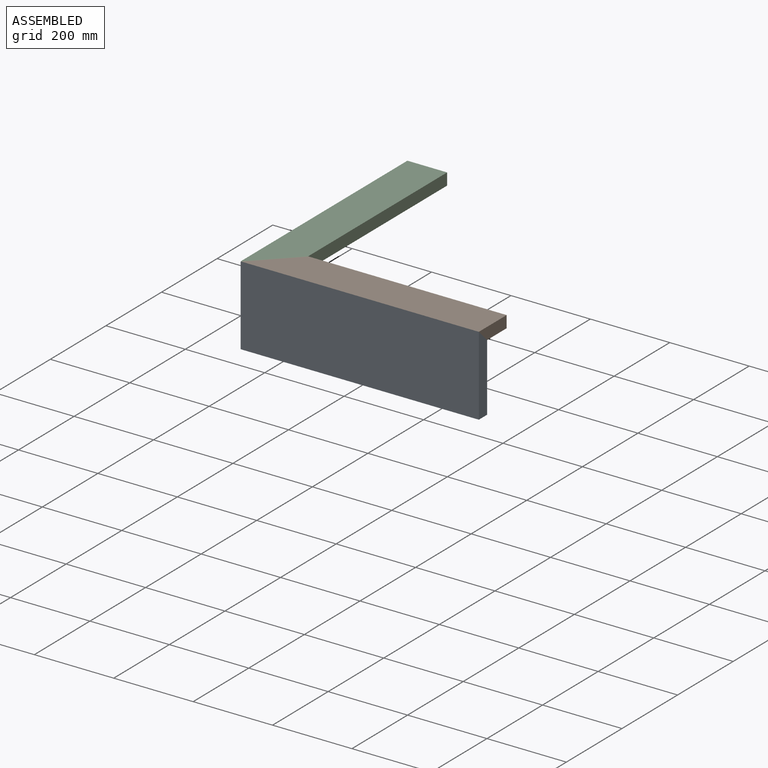
[diagram: assembled view]
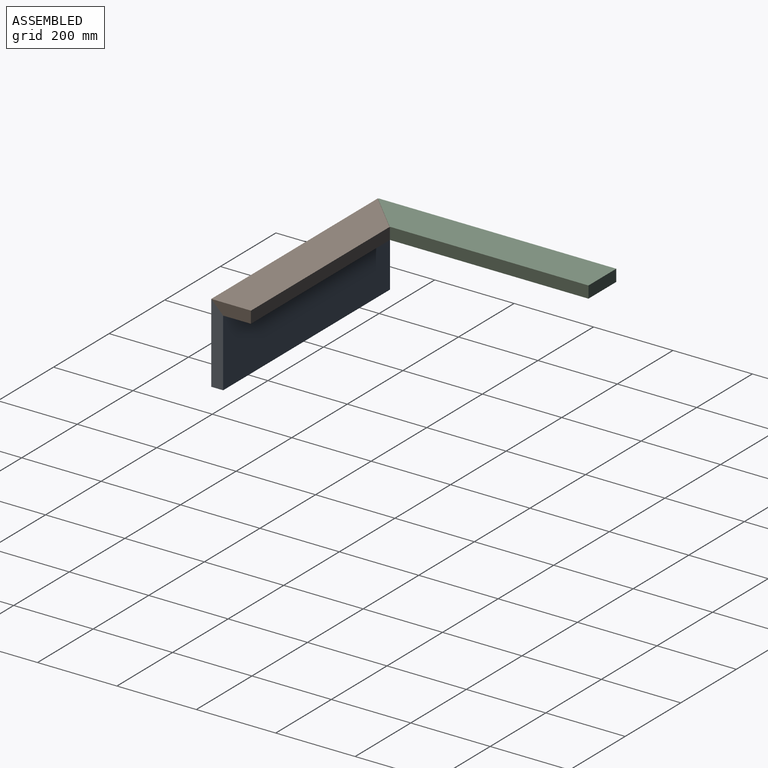
[diagram: assembled view, second angle]
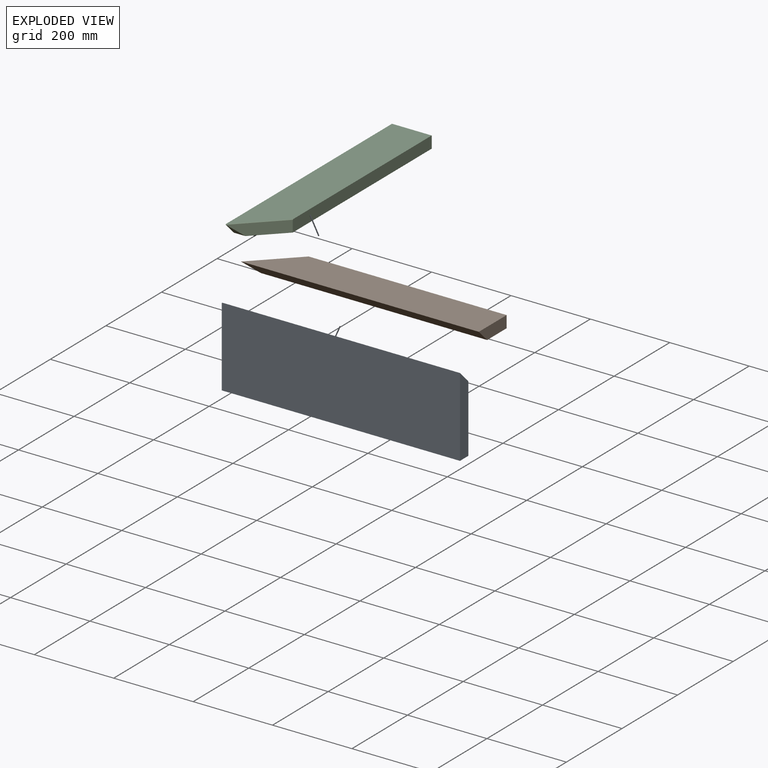
[diagram: exploded view]
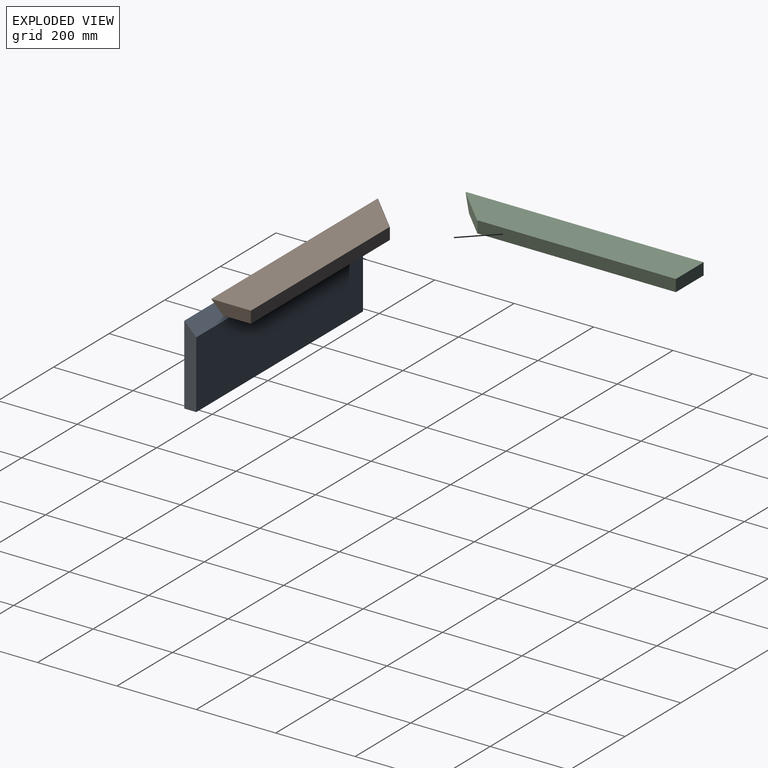
[diagram: exploded view, second angle]
ASSEMBLY  parts=3 mates=2
PART A: 7 faces, bbox 600x30x200 mm
  f0: plane 600x170mm, normal (0,1,0), area 101999.3mm2, adj f1,f2,f3,f5,f6
  f1: plane 200x30mm, normal (1,0,0), area 5550mm2, adj f0,f3,f4,f5
  f2: plane 198.59x30mm, normal (-1,0,0), area 5507.6mm2, adj f0,f3,f4,f6
  f3: plane 600x30mm, normal (0,0,-1), area 18000mm2, adj f0,f1,f2,f4
  f4: plane 600x200mm, normal (0,-1,0), area 119999.3mm2, adj f1,f2,f3,f5,f6
  f5: plane 599x30mm, normal (0,0.71,0.71), area 25413.4mm2, adj f0,f1,f4,f6
  f6: plane 31.41x30mm, normal (-0.71,0.5,0.5), area 60mm2, adj f0,f2,f4,f5
PART B: 7 faces, bbox 599x100x30 mm
  f0: plane 500x30mm, normal (0,1,0), area 14999.3mm2, adj f1,f2,f4,f5,f6
  f1: plane 598.59x100mm, normal (0,0,1), area 54858.6mm2, adj f0,f3,f4,f6
  f2: plane 570x70mm, normal (0,0,-1), area 37450mm2, adj f0,f3,f4,f5
  f3: plane 599x30mm, normal (0,-0.71,-0.71), area 24818.4mm2, adj f1,f2,f4,f5,f6
  f4: plane 100x30mm, normal (1,0,0), area 2550mm2, adj f0,f1,f2,f3
  f5: plane 99x99mm, normal (-0.71,0.71,0), area 3465.5mm2, adj f0,f2,f3,f6
  f6: plane 100.41x100mm, normal (-0.5,0.5,0.71), area 199mm2, adj f0,f1,f3,f5
PART C: 9 faces, bbox 100x599x30 mm
  f0: plane 598.59x30mm, normal (-1,0,0), area 17507.6mm2, adj f1,f3,f4,f8
  f1: plane 100x30mm, normal (0,1,0), area 3000mm2, adj f0,f2,f3,f4
  f2: plane 500x30mm, normal (1,0,0), area 14999.3mm2, adj f1,f3,f4,f5,f7
  f3: plane 598.59x100mm, normal (0,0,1), area 54858.6mm2, adj f0,f1,f2,f7
  f4: plane 570x100mm, normal (0,0,-1), area 54549.3mm2, adj f0,f1,f2,f5,f6,f8
  f5: plane 99x99mm, normal (0.71,-0.71,0), area 3465.5mm2, adj f2,f4,f6,f7
  f6: plane 29x29mm, normal (0,-0.71,-0.71), area 594.7mm2, adj f4,f5,f8
  f7: plane 100.41x100mm, normal (0.5,-0.5,0.71), area 199mm2, adj f2,f3,f5,f8
  f8: plane 30.41x30mm, normal (-0.71,-0.5,-0.5), area 59mm2, adj f0,f4,f6,f7
PLACE A t=(108.23,-177.32,198.07)mm
PLACE B t=(95.16,-209.77,344.39)mm
PLACE C t=(201.49,-166.22,344.39)mm
MATE fastened C.f5 <-> B.f5  axis (0.71,-0.71,0) through (-335.43,-107.32,344.39)mm
MATE fastened B.f3 <-> A.f5  axis (0,-0.71,-0.71) through (164.57,-207.32,374.39)mm
